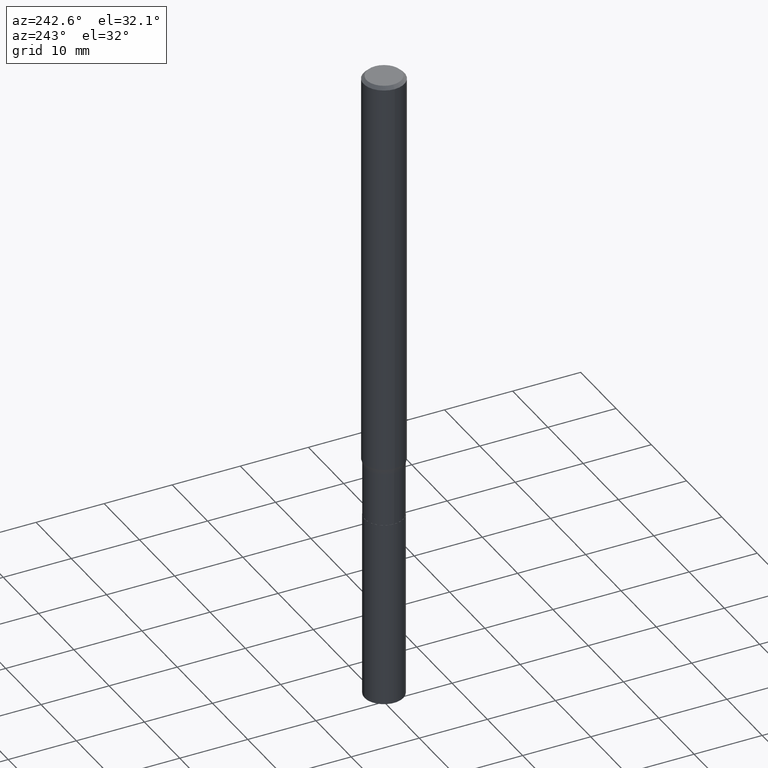
[diagram: clean part render]
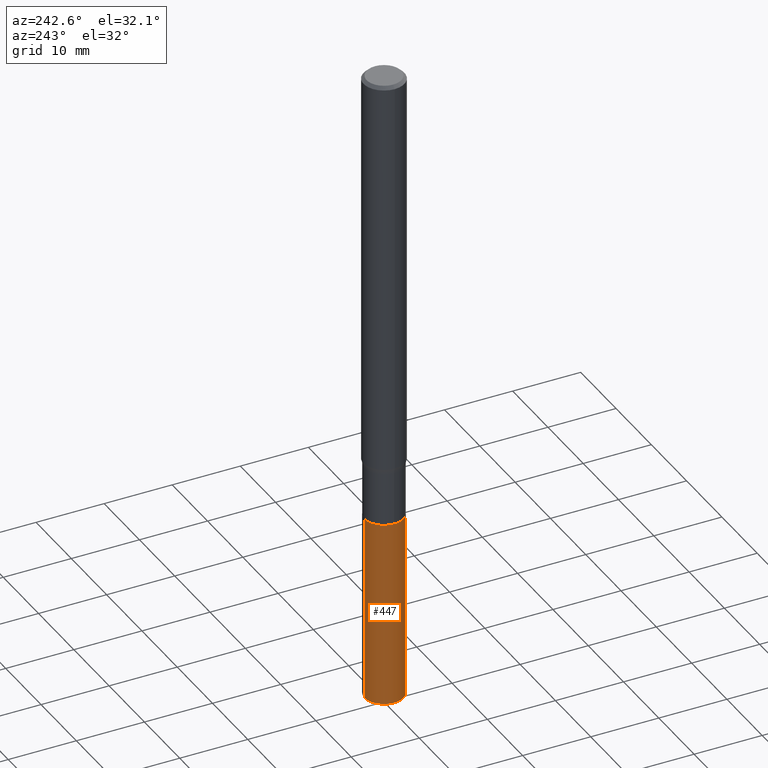
[diagram: same view with one face highlighted and labeled with its STEP entity id]
A machine part, auxiliary view. The second image highlights one B-rep face of the part: STEP entity #447.
In plain terms, the highlighted cylindrical surface (edge-blend (fillet) strip) has radius 2.8499 mm, axis along (-0, 0, 1).
Its self-contained STEP definition (entity closure, byte-faithful):
#9 = DIRECTION ( 'NONE',  ( -2.439359682835014967E-29, 3.500229951190227507E-15, 1.000000000000000000 ) ) ;
#18 = CARTESIAN_POINT ( 'NONE',  ( -7.834884124363077914E-16, -0.1122000000000130809, -3.740200000000000191 ) ) ;
#23 = FACE_OUTER_BOUND ( 'NONE', #395, .T. ) ;
#24 = AXIS2_PLACEMENT_3D ( 'NONE', #276, #9, #376 ) ;
#34 = VERTEX_POINT ( 'NONE', #400 ) ;
#61 = EDGE_CURVE ( 'NONE', #266, #34, #306, .T. ) ;
#76 = DIRECTION ( 'NONE',  ( -2.439359682835014967E-29, 3.500229951190227901E-15, 1.000000000000000000 ) ) ;
#80 = VECTOR ( 'NONE', #76, 39.37007874015748143 ) ;
#83 = EDGE_CURVE ( 'NONE', #34, #333, #375, .T. ) ;
#120 = ORIENTED_EDGE ( 'NONE', *, *, #291, .T. ) ;
#123 = CARTESIAN_POINT ( 'NONE',  ( 7.972289495228971524E-16, 0.1121999999999907238, -2.656200000000000561 ) ) ;
#130 = DIRECTION ( 'NONE',  ( -2.439359682835014967E-29, 3.500229951190227507E-15, 1.000000000000000000 ) ) ;
#154 = ORIENTED_EDGE ( 'NONE', *, *, #83, .F. ) ;
#183 = DIRECTION ( 'NONE',  ( -2.439359682835014967E-29, 3.500229951190227507E-15, 1.000000000000000000 ) ) ;
#191 = DIRECTION ( 'NONE',  ( -6.982962677686265922E-15, -1.000000000000000000, 4.869604266781217263E-15 ) ) ;
#204 = CARTESIAN_POINT ( 'NONE',  ( -7.834884124363341196E-16, -0.1122000000000092784, -2.656199999999999228 ) ) ;
#213 = LINE ( 'NONE', #460, #251 ) ;
#219 = EDGE_CURVE ( 'NONE', #430, #333, #213, .T. ) ;
#247 = CYLINDRICAL_SURFACE ( 'NONE', #455, 0.1122000000000000081 ) ;
#248 = CIRCLE ( 'NONE', #405, 0.1122000000000000219 ) ;
#251 = VECTOR ( 'NONE', #374, 39.37007874015748143 ) ;
#257 = CARTESIAN_POINT ( 'NONE',  ( 7.972289495229104644E-16, 0.1121999999999869629, -3.740200000000001079 ) ) ;
#266 = VERTEX_POINT ( 'NONE', #257 ) ;
#276 = CARTESIAN_POINT ( 'NONE',  ( 6.495654242988960253E-29, -9.274072732235163168E-15, -2.656200000000000117 ) ) ;
#291 = EDGE_CURVE ( 'NONE', #266, #430, #248, .T. ) ;
#306 = LINE ( 'NONE', #123, #80 ) ;
#333 = VERTEX_POINT ( 'NONE', #204 ) ;
#374 = DIRECTION ( 'NONE',  ( -2.439359682835014967E-29, 3.500229951190227901E-15, 1.000000000000000000 ) ) ;
#375 = CIRCLE ( 'NONE', #24, 0.1122000000000000081 ) ;
#376 = DIRECTION ( 'NONE',  ( -6.982962677686265133E-15, -1.000000000000000000, 4.869604266781217263E-15 ) ) ;
#395 = EDGE_LOOP ( 'NONE', ( #406, #120, #465, #154 ) ) ;
#400 = CARTESIAN_POINT ( 'NONE',  ( 7.972289495229238751E-16, 0.1121999999999907238, -2.656200000000000561 ) ) ;
#405 = AXIS2_PLACEMENT_3D ( 'NONE', #466, #183, #191 ) ;
#406 = ORIENTED_EDGE ( 'NONE', *, *, #61, .F. ) ;
#413 = CARTESIAN_POINT ( 'NONE',  ( 6.495654242988960253E-29, -9.274072732235163168E-15, -2.656200000000000117 ) ) ;
#430 = VERTEX_POINT ( 'NONE', #18 ) ;
#447 = ADVANCED_FACE ( 'NONE', ( #23 ), #247, .T. ) ;
#454 = DIRECTION ( 'NONE',  ( -6.982962677686265133E-15, -1.000000000000000000, 4.869604266781217263E-15 ) ) ;
#455 = AXIS2_PLACEMENT_3D ( 'NONE', #413, #130, #454 ) ;
#460 = CARTESIAN_POINT ( 'NONE',  ( -7.834884124363341196E-16, -0.1122000000000092784, -2.656199999999999228 ) ) ;
#465 = ORIENTED_EDGE ( 'NONE', *, *, #219, .T. ) ;
#466 = CARTESIAN_POINT ( 'NONE',  ( 9.139920139182118548E-29, -1.306832199932537301E-14, -3.740200000000000635 ) ) ;